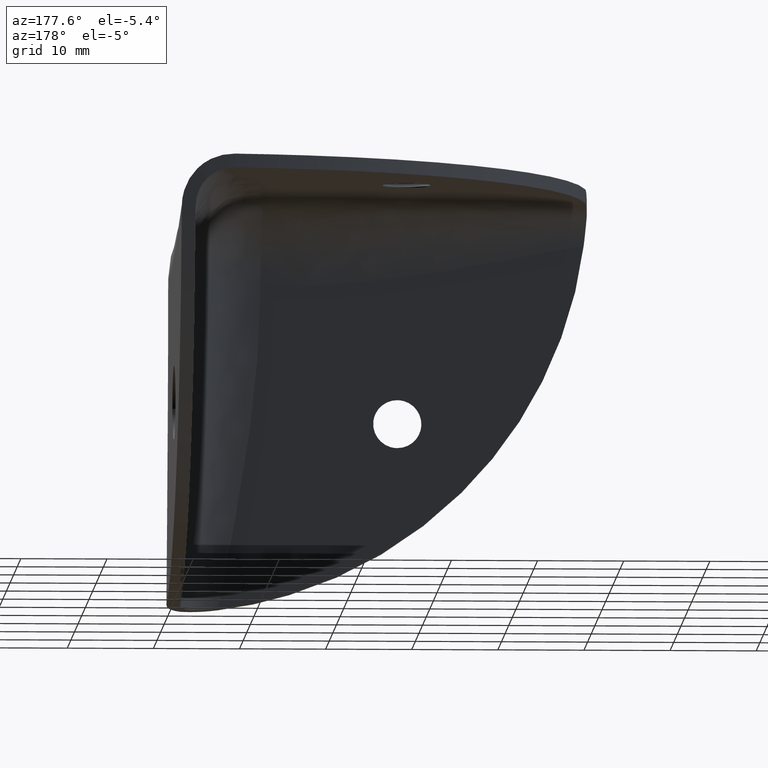
[diagram: clean part render]
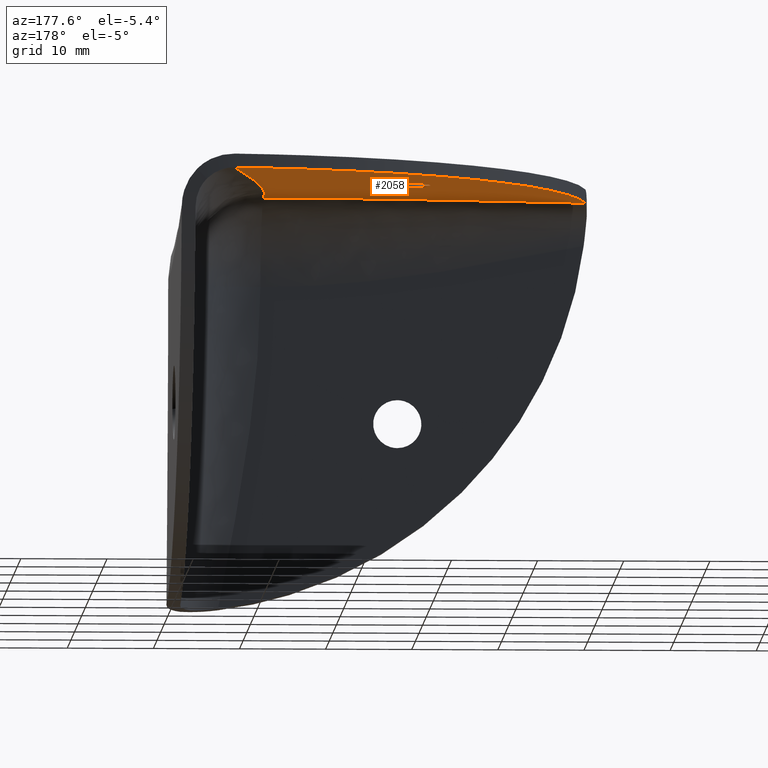
[diagram: same view with one face highlighted and labeled with its STEP entity id]
A machine part, auxiliary view. The second image highlights one B-rep face of the part: STEP entity #2058.
In plain terms, the highlighted face is a freeform B-spline surface patch.
Its self-contained STEP definition (entity closure, byte-faithful):
#767=CARTESIAN_POINT('',(-26.680518107316740,29.781713738012510,47.400000000000013));
#768=VERTEX_POINT('',#767);
#774=CARTESIAN_POINT('',(-24.199999999999999,27.0,47.399999999999999));
#775=VERTEX_POINT('',#774);
#776=CARTESIAN_POINT('',(-26.680518107316747,29.781713738012506,47.400000000000006));
#777=CARTESIAN_POINT('',(-24.199999999999999,29.496824359255552,47.399999999999999));
#778=CARTESIAN_POINT('',(-24.199999999999999,27.0,47.399999999999999));
#786=(BOUNDED_CURVE()B_SPLINE_CURVE(2,(#776,#777,#778),.UNSPECIFIED.,.F.,.U.)B_SPLINE_CURVE_WITH_KNOTS((3,3),(0.269767759698532,0.500000000000000),.UNSPECIFIED.)CURVE()GEOMETRIC_REPRESENTATION_ITEM()RATIONAL_B_SPLINE_CURVE((0.957343728921555,0.730266152253883,1.0))REPRESENTATION_ITEM(''));
#787=EDGE_CURVE('',#768,#775,#786,.T.);
#789=CARTESIAN_POINT('',(-26.829064088269909,24.205222564481922,47.399999999999991));
#790=VERTEX_POINT('',#789);
#791=CARTESIAN_POINT('',(-24.199999999999999,27.0,47.399999999999999));
#792=CARTESIAN_POINT('',(-24.199999999999999,24.366023014613873,47.399999999999999));
#793=CARTESIAN_POINT('',(-26.829064088269917,24.205222564481918,47.399999999999991));
#801=(BOUNDED_CURVE()B_SPLINE_CURVE(2,(#791,#792,#793),.UNSPECIFIED.,.F.,.U.)B_SPLINE_CURVE_WITH_KNOTS((3,3),(0.500000000000000,0.739332962114478),.UNSPECIFIED.)CURVE()GEOMETRIC_REPRESENTATION_ITEM()RATIONAL_B_SPLINE_CURVE((1.0,0.719603993432530,0.976072041399966))REPRESENTATION_ITEM(''));
#802=EDGE_CURVE('',#775,#790,#801,.T.);
#897=CARTESIAN_POINT('',(-29.800000000000001,27.0,47.399999999999999));
#898=VERTEX_POINT('',#897);
#899=CARTESIAN_POINT('',(-26.829064088269913,24.205222564481929,47.399999999999999));
#900=CARTESIAN_POINT('',(-26.914452261728567,24.199999999999999,47.399999999999999));
#901=CARTESIAN_POINT('',(-27.0,24.199999999999999,47.399999999999999));
#902=CARTESIAN_POINT('',(-29.799999999999994,24.199999999999999,47.399999999999999));
#903=CARTESIAN_POINT('',(-29.800000000000001,27.0,47.399999999999999));
#911=(BOUNDED_CURVE()B_SPLINE_CURVE(2,(#899,#900,#901,#902,#903),.UNSPECIFIED.,.F.,.U.)B_SPLINE_CURVE_WITH_KNOTS((3,2,3),(0.739332962114479,0.750000000000000,1.0),.UNSPECIFIED.)CURVE()GEOMETRIC_REPRESENTATION_ITEM()RATIONAL_B_SPLINE_CURVE((0.976072041399967,0.987502787754019,1.0,0.707106781186547,1.0))REPRESENTATION_ITEM(''));
#912=EDGE_CURVE('',#790,#898,#911,.T.);
#914=CARTESIAN_POINT('',(-29.800000000000001,27.0,47.399999999999999));
#915=CARTESIAN_POINT('',(-29.799999999999994,29.799999999999994,47.399999999999999));
#916=CARTESIAN_POINT('',(-27.0,29.800000000000001,47.399999999999999));
#917=CARTESIAN_POINT('',(-26.839735710208874,29.800000000000008,47.399999999999999));
#918=CARTESIAN_POINT('',(-26.680518107316740,29.781713738012506,47.399999999999999));
#926=(BOUNDED_CURVE()B_SPLINE_CURVE(2,(#914,#915,#916,#917,#918),.UNSPECIFIED.,.F.,.U.)B_SPLINE_CURVE_WITH_KNOTS((3,2,3),(0.0,0.250000000000000,0.269767759698532),.UNSPECIFIED.)CURVE()GEOMETRIC_REPRESENTATION_ITEM()RATIONAL_B_SPLINE_CURVE((1.0,0.707106781186547,1.0,0.976840628932665,0.957343728921555))REPRESENTATION_ITEM(''));
#927=EDGE_CURVE('',#898,#768,#926,.T.);
#1446=CARTESIAN_POINT('',(-48.638305576518597,6.171573219134320,47.399999999999999));
#1447=VERTEX_POINT('',#1446);
#1471=CARTESIAN_POINT('',(-11.100000000000000,11.100000000000000,47.399999999999999));
#1472=VERTEX_POINT('',#1471);
#1473=CARTESIAN_POINT('',(-11.100000000000000,11.100000000000000,47.399999999999999));
#1474=CARTESIAN_POINT('',(-23.612768525506219,11.100000000000000,47.399999999999999));
#1475=CARTESIAN_POINT('',(-36.125537051012422,8.647489237526274,47.399999999999999));
#1476=CARTESIAN_POINT('',(-48.638305576518590,6.171573219134320,47.399999999999999));
#1477=B_SPLINE_CURVE_WITH_KNOTS('',3,(#1473,#1474,#1475,#1476),.UNSPECIFIED.,.F.,.U.,(4,4),(0.0,0.619035383993936),.UNSPECIFIED.);
#1478=EDGE_CURVE('',#1472,#1447,#1477,.T.);
#1646=CARTESIAN_POINT('',(-6.171573241230081,48.638305573724800,47.399999999999999));
#1647=VERTEX_POINT('',#1646);
#1648=CARTESIAN_POINT('',(-6.171573241230091,48.638305573724793,47.400000000000020));
#1649=CARTESIAN_POINT('',(-8.647489252117541,36.125537049149841,47.400000000000013));
#1650=CARTESIAN_POINT('',(-11.100000000000000,23.612768524574950,47.400000000000013));
#1651=CARTESIAN_POINT('',(-11.100000000000000,11.100000000000000,47.399999999999999));
#1652=B_SPLINE_CURVE_WITH_KNOTS('',3,(#1648,#1649,#1650,#1651),.UNSPECIFIED.,.F.,.U.,(4,4),(0.380964617847546,1.0),.UNSPECIFIED.);
#1653=EDGE_CURVE('',#1647,#1472,#1652,.T.);
#1908=CARTESIAN_POINT('',(-48.638305576518590,6.171573219134319,47.399999999999999));
#1909=CARTESIAN_POINT('',(-43.871773784877327,43.871773764948038,47.399999999999999));
#1910=CARTESIAN_POINT('',(-6.171573241230076,48.638305573724793,47.399999999999999));
#1918=(BOUNDED_CURVE()B_SPLINE_CURVE(2,(#1908,#1909,#1910),.UNSPECIFIED.,.F.,.U.)CURVE()GEOMETRIC_REPRESENTATION_ITEM()QUASI_UNIFORM_CURVE()RATIONAL_B_SPLINE_CURVE((1.0,0.790217237718224,1.0))REPRESENTATION_ITEM(''));
#1919=EDGE_CURVE('',#1447,#1647,#1918,.T.);
#2042=CARTESIAN_POINT('',(-50.759519173004797,50.759519171175128,47.399999999999999));
#2043=CARTESIAN_POINT('',(-4.050358885379539,50.759519171175128,47.399999999999999));
#2044=CARTESIAN_POINT('',(-50.759519173004797,4.050358862319641,47.399999999999999));
#2045=CARTESIAN_POINT('',(-4.050358885379539,4.050358862319641,47.399999999999999));
#2046=B_SPLINE_SURFACE_WITH_KNOTS('',1,1,((#2042,#2044),(#2043,#2045)),.UNSPECIFIED.,.F.,.F.,.U.,(2,2),(2,2),(0.0,46.709160287625259),(0.0,46.709160308855488),.UNSPECIFIED.);
#2047=ORIENTED_EDGE('',*,*,#1653,.T.);
#2048=ORIENTED_EDGE('',*,*,#1478,.T.);
#2049=ORIENTED_EDGE('',*,*,#1919,.T.);
#2050=EDGE_LOOP('',(#2047,#2048,#2049));
#2051=FACE_OUTER_BOUND('',#2050,.T.);
#2052=ORIENTED_EDGE('',*,*,#802,.F.);
#2053=ORIENTED_EDGE('',*,*,#787,.F.);
#2054=ORIENTED_EDGE('',*,*,#927,.F.);
#2055=ORIENTED_EDGE('',*,*,#912,.F.);
#2056=EDGE_LOOP('',(#2052,#2053,#2054,#2055));
#2057=FACE_BOUND('',#2056,.T.);
#2058=ADVANCED_FACE('',(#2051,#2057),#2046,.T.);